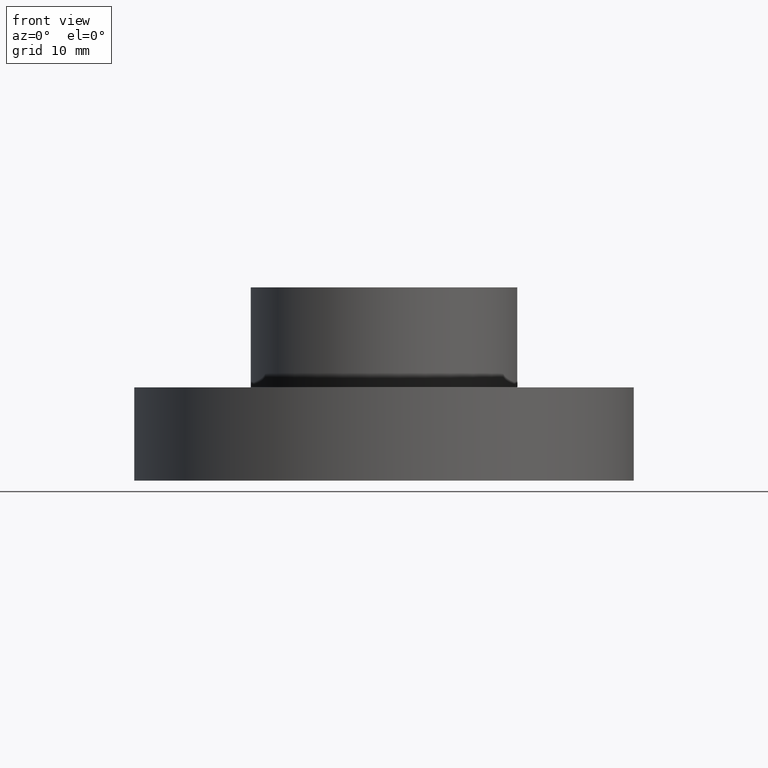
[diagram: clean part render]
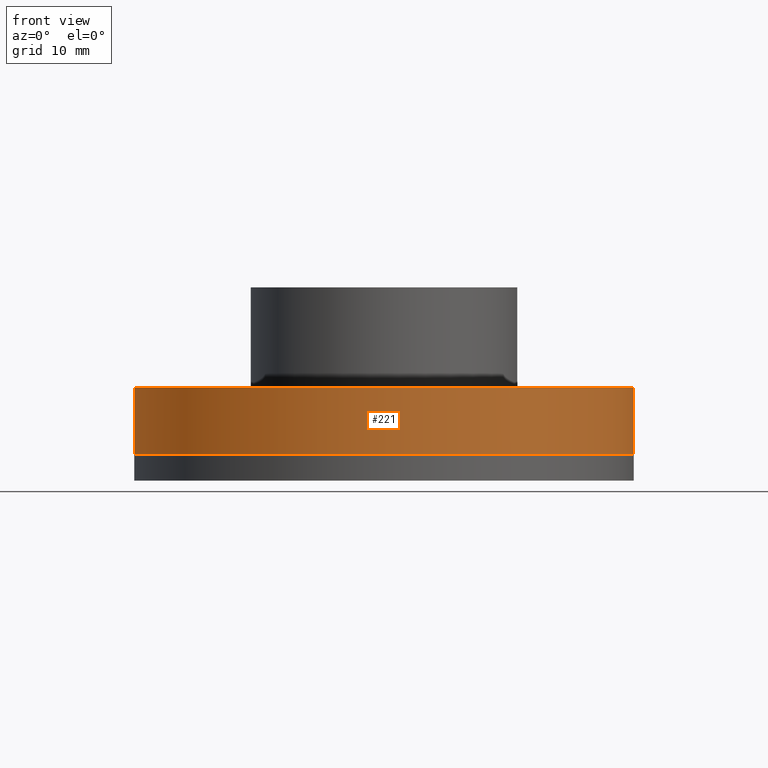
[diagram: same view with one face highlighted and labeled with its STEP entity id]
A machine part, front view. The second image highlights one B-rep face of the part: STEP entity #221.
In plain terms, the highlighted cylindrical surface (bore or boss wall) has radius 37.5 mm, axis along (0, -0, 1).
Its self-contained STEP definition (entity closure, byte-faithful):
#221 = ADVANCED_FACE( '', ( #262, #263 ), #264, .T. );
#262 = FACE_OUTER_BOUND( '', #334, .T. );
#263 = FACE_OUTER_BOUND( '', #335, .T. );
#264 = CYLINDRICAL_SURFACE( '', #336, 37.5000000000000 );
#334 = EDGE_LOOP( '', ( #419 ) );
#335 = EDGE_LOOP( '', ( #420 ) );
#336 = AXIS2_PLACEMENT_3D( '', #421, #422, #423 );
#419 = ORIENTED_EDGE( '', *, *, #572, .F. );
#420 = ORIENTED_EDGE( '', *, *, #573, .T. );
#421 = CARTESIAN_POINT( '', ( 0.000000000000000, 0.000000000000000, 14.0000000000000 ) );
#422 = DIRECTION( '', ( 0.000000000000000, -0.000000000000000, 1.00000000000000 ) );
#423 = DIRECTION( '', ( -1.00000000000000, 0.000000000000000, 0.000000000000000 ) );
#572 = EDGE_CURVE( '', #627, #627, #628, .T. );
#573 = EDGE_CURVE( '', #629, #629, #630, .T. );
#627 = VERTEX_POINT( '', #709 );
#628 = CIRCLE( '', #710, 37.5000000000000 );
#629 = VERTEX_POINT( '', #711 );
#630 = CIRCLE( '', #712, 37.5000000000000 );
#709 = CARTESIAN_POINT( '', ( 37.5000000000000, 0.000000000000000, 14.0000000000000 ) );
#710 = AXIS2_PLACEMENT_3D( '', #956, #957, #958 );
#711 = CARTESIAN_POINT( '', ( 37.5000000000000, 0.000000000000000, 4.00000000000000 ) );
#712 = AXIS2_PLACEMENT_3D( '', #959, #960, #961 );
#956 = CARTESIAN_POINT( '', ( 0.000000000000000, 0.000000000000000, 14.0000000000000 ) );
#957 = DIRECTION( '', ( 0.000000000000000, 0.000000000000000, 1.00000000000000 ) );
#958 = DIRECTION( '', ( 1.00000000000000, 0.000000000000000, 0.000000000000000 ) );
#959 = CARTESIAN_POINT( '', ( 0.000000000000000, 0.000000000000000, 4.00000000000000 ) );
#960 = DIRECTION( '', ( 0.000000000000000, 0.000000000000000, 1.00000000000000 ) );
#961 = DIRECTION( '', ( 1.00000000000000, 0.000000000000000, 0.000000000000000 ) );